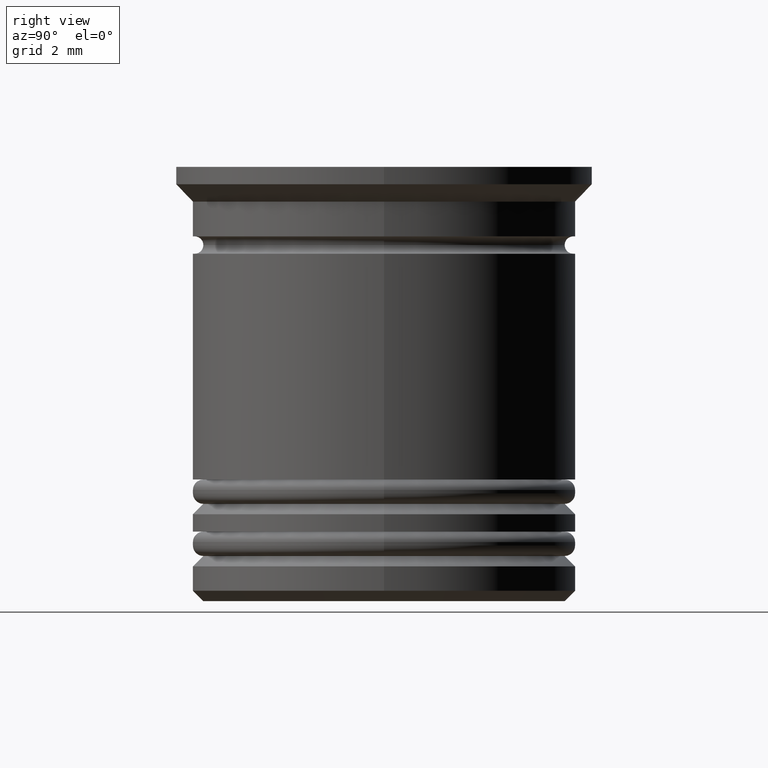
[diagram: clean part render]
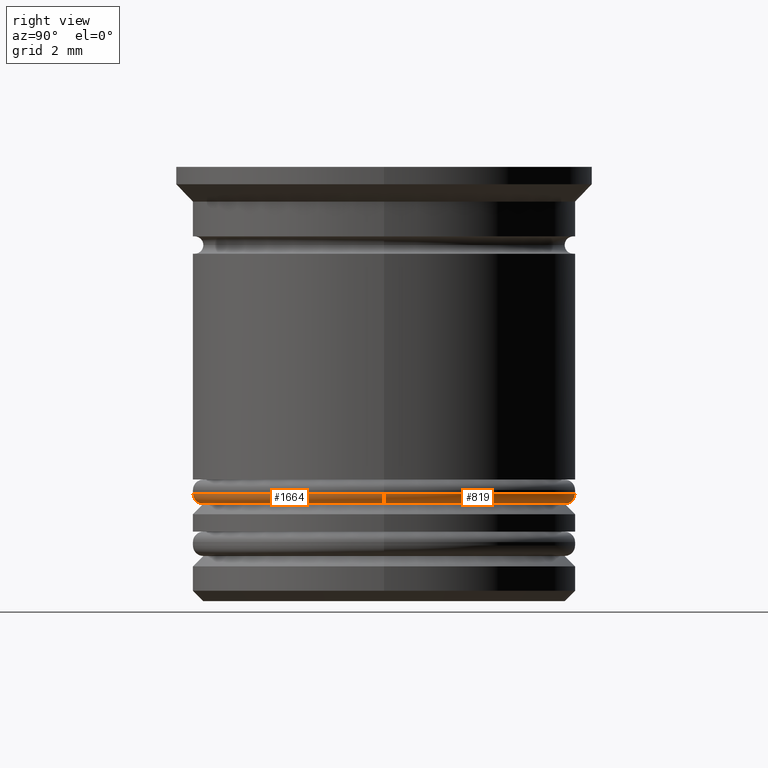
[diagram: same view with one multi-face feature highlighted, each face labeled with its STEP entity id]
A machine part, right view. The highlighted faces form ONE feature: a constant-radius fillet chain: 2 tangent blend faces with common blend radius 0.3 mm. The faces share edges in the B-rep.
Their STEP definitions:
[1] entity #1664 (Torus):
#68 = CARTESIAN_POINT ( 'NONE',  ( 0.000000000000000000, 0.000000000000000000, -9.700000000000006395 ) ) ;
#87 = AXIS2_PLACEMENT_3D ( 'NONE', #1697, #1412, #788 ) ;
#106 = CARTESIAN_POINT ( 'NONE',  ( 5.200000000000001066, 0.000000000000000000, -9.700000000000006395 ) ) ;
#169 = ORIENTED_EDGE ( 'NONE', *, *, #1571, .F. ) ;
#283 = CARTESIAN_POINT ( 'NONE',  ( -5.200000000000001066, 6.551860375438340681E-16, -9.700000000000006395 ) ) ;
#502 = CARTESIAN_POINT ( 'NONE',  ( 5.200000000000001066, 0.000000000000000000, -9.400000000000009237 ) ) ;
#572 = DIRECTION ( 'NONE',  ( 1.000000000000000000, 0.000000000000000000, 0.000000000000000000 ) ) ;
#684 = ORIENTED_EDGE ( 'NONE', *, *, #1141, .F. ) ;
#690 = DIRECTION ( 'NONE',  ( -0.000000000000000000, -0.000000000000000000, -1.000000000000000000 ) ) ;
#754 = EDGE_CURVE ( 'NONE', #986, #924, #1099, .T. ) ;
#788 = DIRECTION ( 'NONE',  ( 1.000000000000000000, 0.000000000000000000, 0.000000000000000000 ) ) ;
#877 = AXIS2_PLACEMENT_3D ( 'NONE', #502, #1838, #1722 ) ;
#924 = VERTEX_POINT ( 'NONE', #957 ) ;
#931 = EDGE_CURVE ( 'NONE', #1626, #989, #1364, .T. ) ;
#947 = CARTESIAN_POINT ( 'NONE',  ( 5.500000000000001776, 0.000000000000000000, -9.400000000000009237 ) ) ;
#952 = DIRECTION ( 'NONE',  ( -1.000000000000000000, 1.224646799147353207E-16, 0.000000000000000000 ) ) ;
#957 = CARTESIAN_POINT ( 'NONE',  ( -5.500000000000001776, 6.735557395310443995E-16, -9.400000000000009237 ) ) ;
#980 = AXIS2_PLACEMENT_3D ( 'NONE', #1647, #1052, #572 ) ;
#986 = VERTEX_POINT ( 'NONE', #283 ) ;
#989 = VERTEX_POINT ( 'NONE', #947 ) ;
#1052 = DIRECTION ( 'NONE',  ( 0.000000000000000000, 0.000000000000000000, 1.000000000000000000 ) ) ;
#1098 = EDGE_LOOP ( 'NONE', ( #1275, #684, #1317, #169 ) ) ;
#1099 = CIRCLE ( 'NONE', #1362, 0.2999999999999999334 ) ;
#1131 = DIRECTION ( 'NONE',  ( 1.224646799147353207E-16, 1.000000000000000000, -0.000000000000000000 ) ) ;
#1141 = EDGE_CURVE ( 'NONE', #1626, #986, #1558, .T. ) ;
#1144 = DIRECTION ( 'NONE',  ( 1.000000000000000000, 0.000000000000000000, 0.000000000000000000 ) ) ;
#1275 = ORIENTED_EDGE ( 'NONE', *, *, #754, .F. ) ;
#1306 = CIRCLE ( 'NONE', #980, 5.500000000000001776 ) ;
#1317 = ORIENTED_EDGE ( 'NONE', *, *, #931, .T. ) ;
#1362 = AXIS2_PLACEMENT_3D ( 'NONE', #1573, #1131, #952 ) ;
#1364 = CIRCLE ( 'NONE', #877, 0.2999999999999999334 ) ;
#1378 = FACE_OUTER_BOUND ( 'NONE', #1098, .T. ) ;
#1412 = DIRECTION ( 'NONE',  ( 0.000000000000000000, 0.000000000000000000, 1.000000000000000000 ) ) ;
#1435 = AXIS2_PLACEMENT_3D ( 'NONE', #68, #690, #1144 ) ;
#1500 = TOROIDAL_SURFACE ( 'NONE', #87, 5.200000000000001066, 0.2999999999999999889 ) ;
#1558 = CIRCLE ( 'NONE', #1435, 5.200000000000001066 ) ;
#1571 = EDGE_CURVE ( 'NONE', #924, #989, #1306, .T. ) ;
#1573 = CARTESIAN_POINT ( 'NONE',  ( -5.200000000000001066, 6.368163355566238354E-16, -9.400000000000009237 ) ) ;
#1626 = VERTEX_POINT ( 'NONE', #106 ) ;
#1647 = CARTESIAN_POINT ( 'NONE',  ( 0.000000000000000000, 0.000000000000000000, -9.400000000000009237 ) ) ;
#1664 = ADVANCED_FACE ( 'NONE', ( #1378 ), #1500, .T. ) ;
#1697 = CARTESIAN_POINT ( 'NONE',  ( 0.000000000000000000, 0.000000000000000000, -9.400000000000009237 ) ) ;
#1722 = DIRECTION ( 'NONE',  ( 0.000000000000000000, 0.000000000000000000, -1.000000000000000000 ) ) ;
#1838 = DIRECTION ( 'NONE',  ( 0.000000000000000000, -1.000000000000000000, 0.000000000000000000 ) ) ;
[2] entity #819 (Torus):
#94 = EDGE_LOOP ( 'NONE', ( #340, #604, #1185, #1288 ) ) ;
#106 = CARTESIAN_POINT ( 'NONE',  ( 5.200000000000001066, 0.000000000000000000, -9.700000000000006395 ) ) ;
#272 = DIRECTION ( 'NONE',  ( 1.000000000000000000, 0.000000000000000000, 0.000000000000000000 ) ) ;
#283 = CARTESIAN_POINT ( 'NONE',  ( -5.200000000000001066, 6.551860375438340681E-16, -9.700000000000006395 ) ) ;
#340 = ORIENTED_EDGE ( 'NONE', *, *, #842, .F. ) ;
#502 = CARTESIAN_POINT ( 'NONE',  ( 5.200000000000001066, 0.000000000000000000, -9.400000000000009237 ) ) ;
#586 = TOROIDAL_SURFACE ( 'NONE', #1850, 5.200000000000001066, 0.2999999999999999889 ) ;
#604 = ORIENTED_EDGE ( 'NONE', *, *, #754, .T. ) ;
#698 = DIRECTION ( 'NONE',  ( 1.000000000000000000, 0.000000000000000000, 0.000000000000000000 ) ) ;
#754 = EDGE_CURVE ( 'NONE', #986, #924, #1099, .T. ) ;
#819 = ADVANCED_FACE ( 'NONE', ( #1670 ), #586, .T. ) ;
#842 = EDGE_CURVE ( 'NONE', #986, #1626, #905, .T. ) ;
#877 = AXIS2_PLACEMENT_3D ( 'NONE', #502, #1838, #1722 ) ;
#905 = CIRCLE ( 'NONE', #1795, 5.200000000000001066 ) ;
#924 = VERTEX_POINT ( 'NONE', #957 ) ;
#931 = EDGE_CURVE ( 'NONE', #1626, #989, #1364, .T. ) ;
#947 = CARTESIAN_POINT ( 'NONE',  ( 5.500000000000001776, 0.000000000000000000, -9.400000000000009237 ) ) ;
#952 = DIRECTION ( 'NONE',  ( -1.000000000000000000, 1.224646799147353207E-16, 0.000000000000000000 ) ) ;
#957 = CARTESIAN_POINT ( 'NONE',  ( -5.500000000000001776, 6.735557395310443995E-16, -9.400000000000009237 ) ) ;
#986 = VERTEX_POINT ( 'NONE', #283 ) ;
#989 = VERTEX_POINT ( 'NONE', #947 ) ;
#1012 = AXIS2_PLACEMENT_3D ( 'NONE', #1079, #1728, #1715 ) ;
#1015 = DIRECTION ( 'NONE',  ( -0.000000000000000000, -0.000000000000000000, -1.000000000000000000 ) ) ;
#1079 = CARTESIAN_POINT ( 'NONE',  ( 0.000000000000000000, 0.000000000000000000, -9.400000000000009237 ) ) ;
#1099 = CIRCLE ( 'NONE', #1362, 0.2999999999999999334 ) ;
#1131 = DIRECTION ( 'NONE',  ( 1.224646799147353207E-16, 1.000000000000000000, -0.000000000000000000 ) ) ;
#1185 = ORIENTED_EDGE ( 'NONE', *, *, #1651, .F. ) ;
#1209 = CIRCLE ( 'NONE', #1012, 5.500000000000001776 ) ;
#1288 = ORIENTED_EDGE ( 'NONE', *, *, #931, .F. ) ;
#1350 = CARTESIAN_POINT ( 'NONE',  ( 0.000000000000000000, 0.000000000000000000, -9.700000000000006395 ) ) ;
#1362 = AXIS2_PLACEMENT_3D ( 'NONE', #1573, #1131, #952 ) ;
#1364 = CIRCLE ( 'NONE', #877, 0.2999999999999999334 ) ;
#1573 = CARTESIAN_POINT ( 'NONE',  ( -5.200000000000001066, 6.368163355566238354E-16, -9.400000000000009237 ) ) ;
#1626 = VERTEX_POINT ( 'NONE', #106 ) ;
#1651 = EDGE_CURVE ( 'NONE', #989, #924, #1209, .T. ) ;
#1670 = FACE_OUTER_BOUND ( 'NONE', #94, .T. ) ;
#1715 = DIRECTION ( 'NONE',  ( 1.000000000000000000, 0.000000000000000000, 0.000000000000000000 ) ) ;
#1722 = DIRECTION ( 'NONE',  ( 0.000000000000000000, 0.000000000000000000, -1.000000000000000000 ) ) ;
#1728 = DIRECTION ( 'NONE',  ( 0.000000000000000000, 0.000000000000000000, 1.000000000000000000 ) ) ;
#1795 = AXIS2_PLACEMENT_3D ( 'NONE', #1350, #1015, #698 ) ;
#1813 = DIRECTION ( 'NONE',  ( 0.000000000000000000, 0.000000000000000000, 1.000000000000000000 ) ) ;
#1819 = CARTESIAN_POINT ( 'NONE',  ( 0.000000000000000000, 0.000000000000000000, -9.400000000000009237 ) ) ;
#1838 = DIRECTION ( 'NONE',  ( 0.000000000000000000, -1.000000000000000000, 0.000000000000000000 ) ) ;
#1850 = AXIS2_PLACEMENT_3D ( 'NONE', #1819, #1813, #272 ) ;